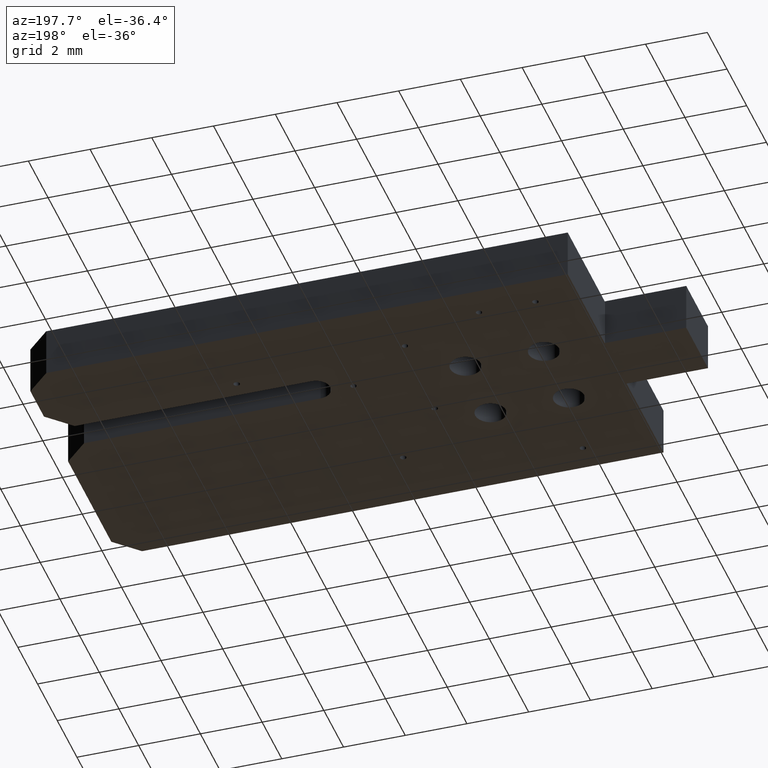
[diagram: clean part render]
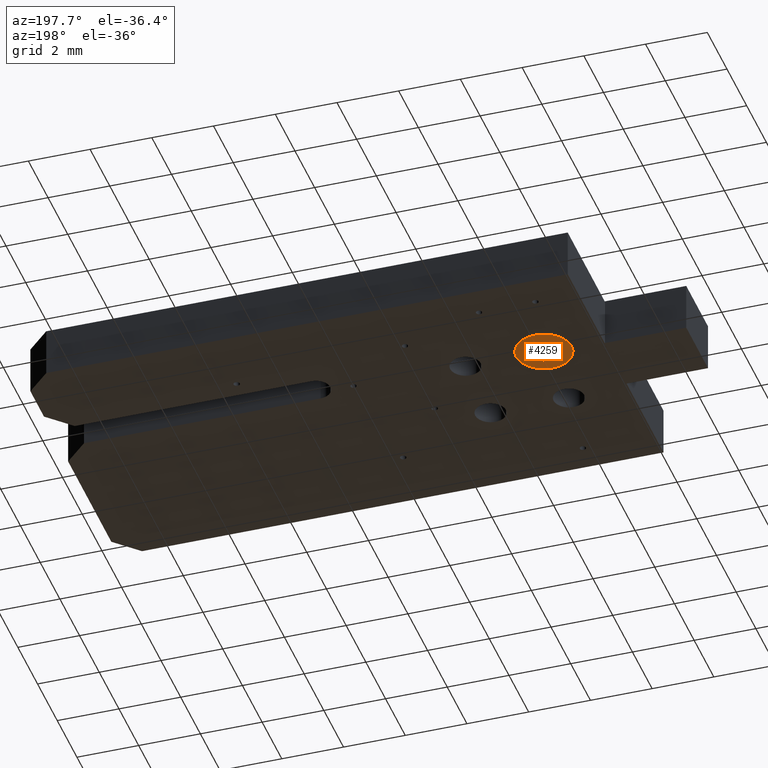
[diagram: same view with one face highlighted and labeled with its STEP entity id]
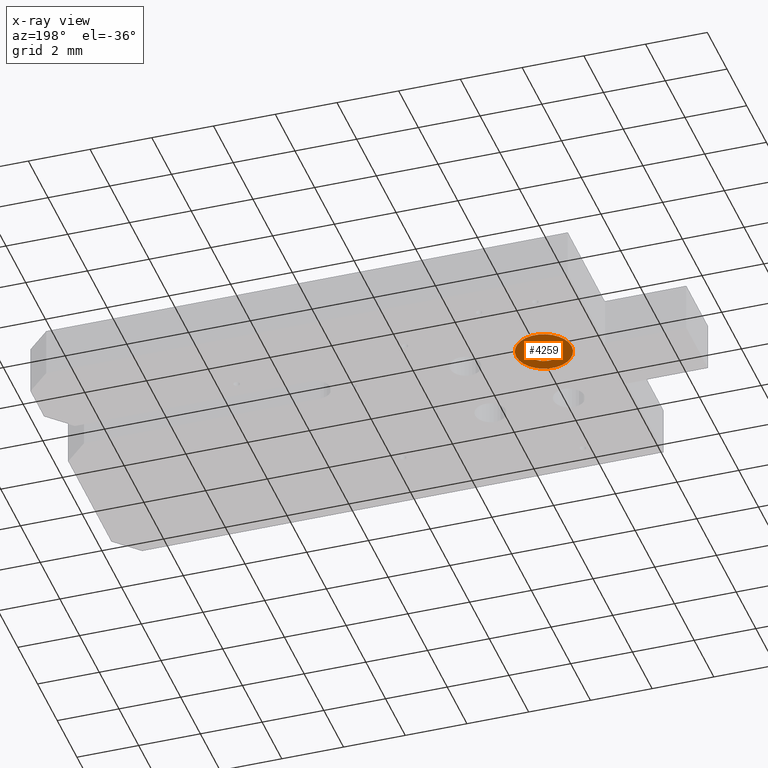
[diagram: x-ray of the same camera — body ghosted, the highlighted face saturated]
A machine part, auxiliary view. The second image highlights one B-rep face of the part: STEP entity #4259.
The next image is the same camera in x-ray: the body ghosted, the highlighted face saturated — about 0% of this face is hidden behind the body in this view.
In plain terms, the highlighted planar face has unit normal (-0, -0, -1).
Its self-contained STEP definition (entity closure, byte-faithful):
#4259 = ADVANCED_FACE('',(#4260,#4280),#4300,.T.);
#4260 = FACE_BOUND('',#4261,.T.);
#4261 = EDGE_LOOP('',(#4262,#4273));
#4262 = ORIENTED_EDGE('',*,*,#4263,.T.);
#4263 = EDGE_CURVE('',#4264,#4266,#4268,.T.);
#4264 = VERTEX_POINT('',#4265);
#4265 = CARTESIAN_POINT('',(6.894411988824,1.270002540005,0.));
#4266 = VERTEX_POINT('',#4267);
#4267 = CARTESIAN_POINT('',(5.094411988824,1.270002540005,0.));
#4268 = CIRCLE('',#4269,0.9);
#4269 = AXIS2_PLACEMENT_3D('',#4270,#4271,#4272);
#4270 = CARTESIAN_POINT('',(5.994411988824,1.270002540005,0.));
#4271 = DIRECTION('',(-0.,0.,-1.));
#4272 = DIRECTION('',(1.,-1.110223024625E-16,-0.));
#4273 = ORIENTED_EDGE('',*,*,#4274,.T.);
#4274 = EDGE_CURVE('',#4266,#4264,#4275,.T.);
#4275 = CIRCLE('',#4276,0.9);
#4276 = AXIS2_PLACEMENT_3D('',#4277,#4278,#4279);
#4277 = CARTESIAN_POINT('',(5.994411988824,1.270002540005,0.));
#4278 = DIRECTION('',(0.,0.,-1.));
#4279 = DIRECTION('',(-1.,1.110223024625E-16,0.));
#4280 = FACE_BOUND('',#4281,.T.);
#4281 = EDGE_LOOP('',(#4282,#4293));
#4282 = ORIENTED_EDGE('',*,*,#4283,.T.);
#4283 = EDGE_CURVE('',#4284,#4286,#4288,.T.);
#4284 = VERTEX_POINT('',#4285);
#4285 = CARTESIAN_POINT('',(5.494411988824,1.270002540005,0.));
#4286 = VERTEX_POINT('',#4287);
#4287 = CARTESIAN_POINT('',(6.494411988824,1.270002540005,0.));
#4288 = CIRCLE('',#4289,0.5);
#4289 = AXIS2_PLACEMENT_3D('',#4290,#4291,#4292);
#4290 = CARTESIAN_POINT('',(5.994411988824,1.270002540005,0.));
#4291 = DIRECTION('',(0.,0.,1.));
#4292 = DIRECTION('',(-1.,-1.110223024625E-16,0.));
#4293 = ORIENTED_EDGE('',*,*,#4294,.T.);
#4294 = EDGE_CURVE('',#4286,#4284,#4295,.T.);
#4295 = CIRCLE('',#4296,0.5);
#4296 = AXIS2_PLACEMENT_3D('',#4297,#4298,#4299);
#4297 = CARTESIAN_POINT('',(5.994411988824,1.270002540005,0.));
#4298 = DIRECTION('',(0.,0.,1.));
#4299 = DIRECTION('',(1.,1.110223024625E-16,-0.));
#4300 = PLANE('',#4301);
#4301 = AXIS2_PLACEMENT_3D('',#4302,#4303,#4304);
#4302 = CARTESIAN_POINT('',(5.994411988824,1.270002540005,0.));
#4303 = DIRECTION('',(-0.,-0.,-1.));
#4304 = DIRECTION('',(-1.,0.,0.));